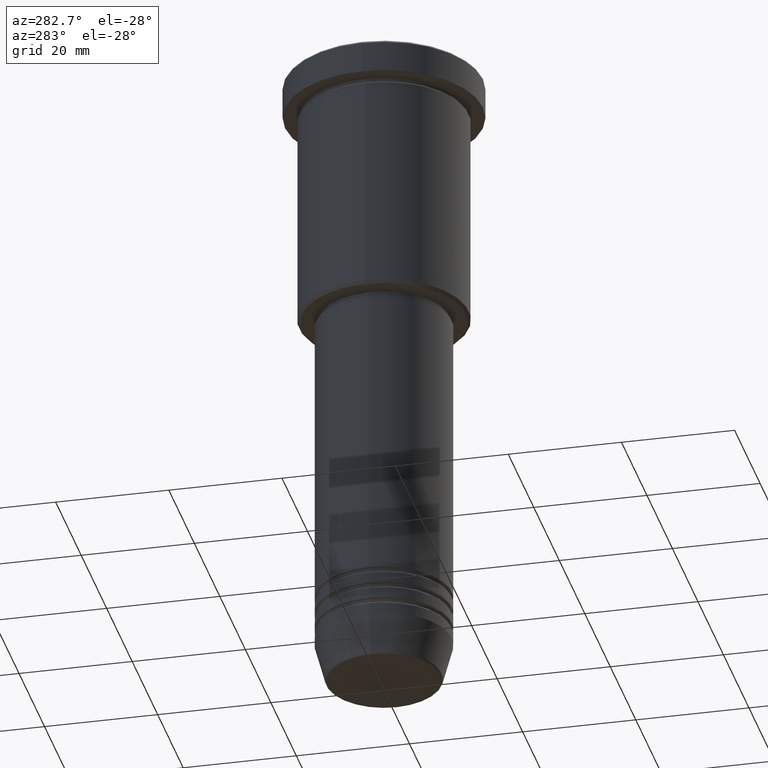
[diagram: clean part render]
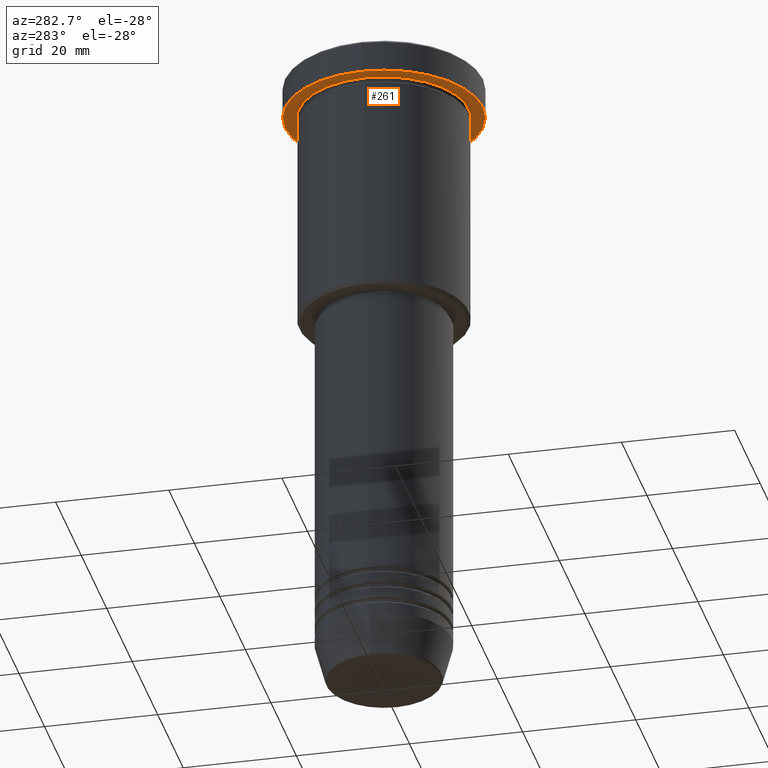
[diagram: same view with one face highlighted and labeled with its STEP entity id]
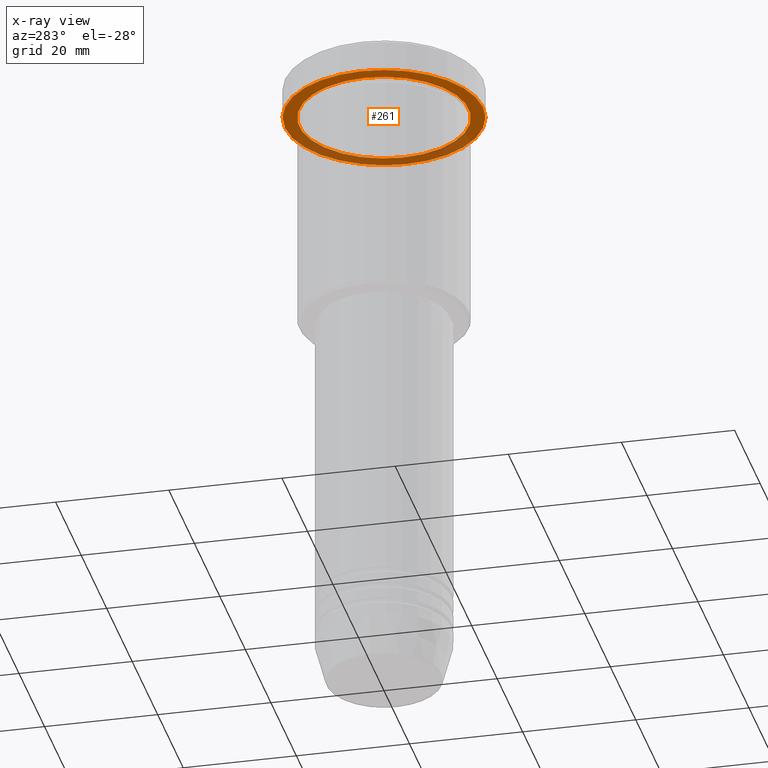
[diagram: x-ray of the same camera — body ghosted, the highlighted face saturated]
A machine part, auxiliary view. The second image highlights one B-rep face of the part: STEP entity #261.
The next image is the same camera in x-ray: the body ghosted, the highlighted face saturated — about 35% of this face is hidden behind the body in this view.
In plain terms, the highlighted planar face has unit normal (0, 0, -1).
Its self-contained STEP definition (entity closure, byte-faithful):
#1 = CARTESIAN_POINT ( 'NONE',  ( 0.000000000000000000, 0.000000000000000000, -5.999999999999995559 ) ) ;
#11 = AXIS2_PLACEMENT_3D ( 'NONE', #77, #722, #174 ) ;
#44 = CARTESIAN_POINT ( 'NONE',  ( 0.000000000000000000, 0.000000000000000000, -5.999999999999995559 ) ) ;
#52 = DIRECTION ( 'NONE',  ( -1.000000000000000000, 0.000000000000000000, 0.000000000000000000 ) ) ;
#55 = EDGE_LOOP ( 'NONE', ( #360, #472 ) ) ;
#69 = FACE_BOUND ( 'NONE', #118, .T. ) ;
#77 = CARTESIAN_POINT ( 'NONE',  ( 0.000000000000000000, 0.000000000000000000, -5.999999999999995559 ) ) ;
#118 = EDGE_LOOP ( 'NONE', ( #605, #609 ) ) ;
#151 = AXIS2_PLACEMENT_3D ( 'NONE', #1, #744, #844 ) ;
#174 = DIRECTION ( 'NONE',  ( 1.000000000000000000, 0.000000000000000000, 0.000000000000000000 ) ) ;
#188 = AXIS2_PLACEMENT_3D ( 'NONE', #863, #769, #975 ) ;
#190 = CARTESIAN_POINT ( 'NONE',  ( 17.50000000000000000, 0.000000000000000000, -5.999999999999995559 ) ) ;
#192 = EDGE_CURVE ( 'NONE', #1077, #473, #437, .T. ) ;
#220 = EDGE_CURVE ( 'NONE', #473, #1077, #580, .T. ) ;
#261 = ADVANCED_FACE ( 'NONE', ( #69, #1151 ), #879, .T. ) ;
#284 = AXIS2_PLACEMENT_3D ( 'NONE', #316, #667, #52 ) ;
#285 = CIRCLE ( 'NONE', #11, 17.50000000000000000 ) ;
#286 = CIRCLE ( 'NONE', #151, 17.50000000000000000 ) ;
#312 = VERTEX_POINT ( 'NONE', #190 ) ;
#316 = CARTESIAN_POINT ( 'NONE',  ( 0.000000000000000000, 0.000000000000000000, -5.999999999999995559 ) ) ;
#360 = ORIENTED_EDGE ( 'NONE', *, *, #850, .F. ) ;
#437 = CIRCLE ( 'NONE', #284, 15.00000000000000000 ) ;
#472 = ORIENTED_EDGE ( 'NONE', *, *, #677, .F. ) ;
#473 = VERTEX_POINT ( 'NONE', #746 ) ;
#580 = CIRCLE ( 'NONE', #758, 15.00000000000000000 ) ;
#584 = DIRECTION ( 'NONE',  ( -1.000000000000000000, 0.000000000000000000, 0.000000000000000000 ) ) ;
#605 = ORIENTED_EDGE ( 'NONE', *, *, #192, .T. ) ;
#609 = ORIENTED_EDGE ( 'NONE', *, *, #220, .T. ) ;
#667 = DIRECTION ( 'NONE',  ( -0.000000000000000000, -0.000000000000000000, 1.000000000000000000 ) ) ;
#677 = EDGE_CURVE ( 'NONE', #959, #312, #285, .T. ) ;
#696 = CARTESIAN_POINT ( 'NONE',  ( -17.50000000000000000, 2.143131898507868248E-15, -5.999999999999995559 ) ) ;
#722 = DIRECTION ( 'NONE',  ( -0.000000000000000000, -0.000000000000000000, 1.000000000000000000 ) ) ;
#744 = DIRECTION ( 'NONE',  ( -0.000000000000000000, -0.000000000000000000, 1.000000000000000000 ) ) ;
#746 = CARTESIAN_POINT ( 'NONE',  ( 15.00000000000000000, 1.836970198721029589E-15, -5.999999999999994671 ) ) ;
#758 = AXIS2_PLACEMENT_3D ( 'NONE', #44, #773, #584 ) ;
#769 = DIRECTION ( 'NONE',  ( 0.000000000000000000, 0.000000000000000000, -1.000000000000000000 ) ) ;
#773 = DIRECTION ( 'NONE',  ( -0.000000000000000000, -0.000000000000000000, 1.000000000000000000 ) ) ;
#808 = CARTESIAN_POINT ( 'NONE',  ( -15.00000000000000000, 0.000000000000000000, -5.999999999999994671 ) ) ;
#844 = DIRECTION ( 'NONE',  ( 1.000000000000000000, 0.000000000000000000, 0.000000000000000000 ) ) ;
#850 = EDGE_CURVE ( 'NONE', #312, #959, #286, .T. ) ;
#863 = CARTESIAN_POINT ( 'NONE',  ( 0.000000000000000000, 17.50000000000000000, -5.999999999999995559 ) ) ;
#879 = PLANE ( 'NONE',  #188 ) ;
#959 = VERTEX_POINT ( 'NONE', #696 ) ;
#975 = DIRECTION ( 'NONE',  ( -1.000000000000000000, 0.000000000000000000, -0.000000000000000000 ) ) ;
#1077 = VERTEX_POINT ( 'NONE', #808 ) ;
#1151 = FACE_OUTER_BOUND ( 'NONE', #55, .T. ) ;